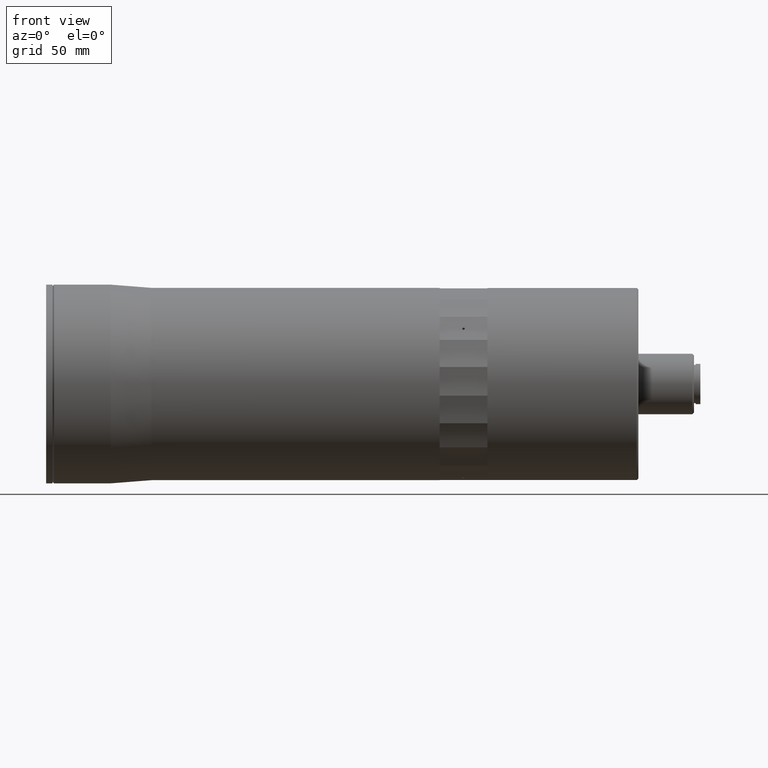
[diagram: clean part render]
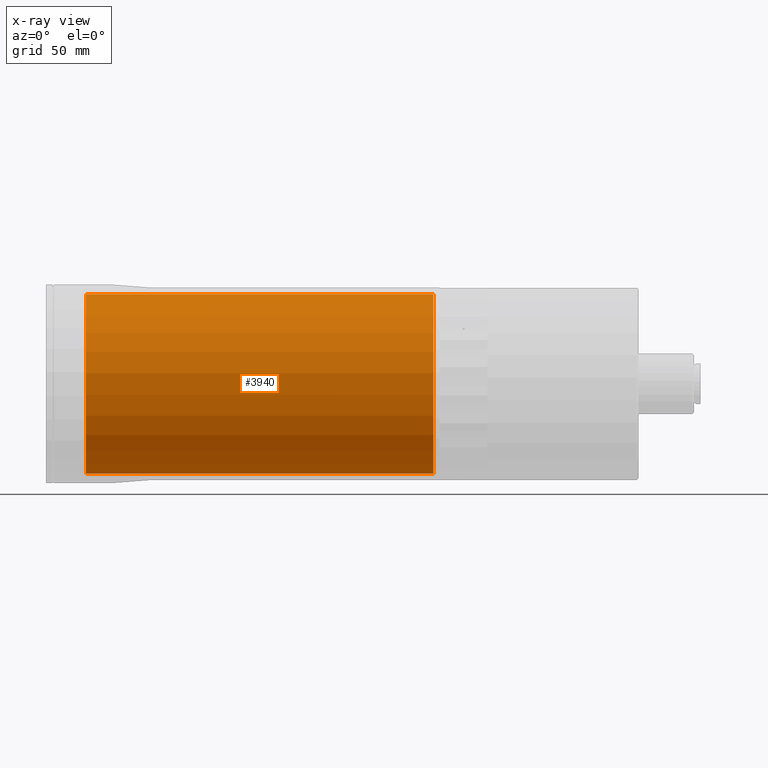
[diagram: x-ray — body ghosted, one internal face saturated and labeled with its STEP entity id]
A machine part, front view, then the same camera in x-ray: the body is ghosted and one INTERNAL B-rep face — a face not visible from any outside direction — is saturated and labeled: STEP entity #3940.
In plain terms, the highlighted cylindrical surface (partial cylindrical patch) has radius 56.5 mm, axis along (-1, -0, -0).
Its self-contained STEP definition (entity closure, byte-faithful):
#620 = CYLINDRICAL_SURFACE ( 'NONE', #20852, 56.49999999999998600 ) ;
#683 = EDGE_CURVE ( 'NONE', #4794, #3266, #19093, .T. ) ;
#3266 = VERTEX_POINT ( 'NONE', #5783 ) ;
#3619 = CARTESIAN_POINT ( 'NONE',  ( -125.8137890602518100, 0.0000000000000000000, 0.0000000000000000000 ) ) ;
#3940 = ADVANCED_FACE ( 'NONE', ( #5693 ), #620, .F. ) ;
#4377 = VERTEX_POINT ( 'NONE', #7672 ) ;
#4794 = VERTEX_POINT ( 'NONE', #22715 ) ;
#4838 = DIRECTION ( 'NONE',  ( -1.000000000000000000, -0.0000000000000000000, -0.0000000000000000000 ) ) ;
#5121 = DIRECTION ( 'NONE',  ( 0.0000000000000000000, 0.0000000000000000000, 1.000000000000000000 ) ) ;
#5625 = VECTOR ( 'NONE', #4838, 1000.000000000000000 ) ;
#5693 = FACE_OUTER_BOUND ( 'NONE', #22801, .T. ) ;
#5783 = CARTESIAN_POINT ( 'NONE',  ( -45.88266625839382600, 0.0000000000000000000, 56.50000000000000000 ) ) ;
#6946 = ORIENTED_EDGE ( 'NONE', *, *, #22395, .T. ) ;
#7538 = CARTESIAN_POINT ( 'NONE',  ( -264.4826662583938600, 6.919254415182543800E-015, -56.49999999999997200 ) ) ;
#7672 = CARTESIAN_POINT ( 'NONE',  ( -264.4826662583938600, 0.0000000000000000000, 56.49999999999997200 ) ) ;
#8251 = LINE ( 'NONE', #19760, #19539 ) ;
#8360 = DIRECTION ( 'NONE',  ( 0.0000000000000000000, 0.0000000000000000000, 1.000000000000000000 ) ) ;
#8881 = DIRECTION ( 'NONE',  ( -1.000000000000000000, -0.0000000000000000000, -0.0000000000000000000 ) ) ;
#9773 = AXIS2_PLACEMENT_3D ( 'NONE', #18044, #16294, #19726 ) ;
#10108 = CARTESIAN_POINT ( 'NONE',  ( -125.8137890602518100, 0.0000000000000000000, 56.49999999999998600 ) ) ;
#10875 = EDGE_CURVE ( 'NONE', #4794, #21883, #8251, .T. ) ;
#11480 = ORIENTED_EDGE ( 'NONE', *, *, #10875, .T. ) ;
#11995 = CARTESIAN_POINT ( 'NONE',  ( -45.88266625839382600, 0.0000000000000000000, 0.0000000000000000000 ) ) ;
#12300 = AXIS2_PLACEMENT_3D ( 'NONE', #11995, #19472, #8360 ) ;
#14536 = DIRECTION ( 'NONE',  ( -1.000000000000000000, -0.0000000000000000000, -0.0000000000000000000 ) ) ;
#16294 = DIRECTION ( 'NONE',  ( -1.000000000000000000, -0.0000000000000000000, -0.0000000000000000000 ) ) ;
#17094 = LINE ( 'NONE', #10108, #5625 ) ;
#18044 = CARTESIAN_POINT ( 'NONE',  ( -264.4826662583938600, 0.0000000000000000000, 0.0000000000000000000 ) ) ;
#18118 = ORIENTED_EDGE ( 'NONE', *, *, #683, .F. ) ;
#19093 = CIRCLE ( 'NONE', #12300, 56.50000000000000000 ) ;
#19472 = DIRECTION ( 'NONE',  ( -1.000000000000000000, -0.0000000000000000000, -0.0000000000000000000 ) ) ;
#19539 = VECTOR ( 'NONE', #14536, 1000.000000000000000 ) ;
#19726 = DIRECTION ( 'NONE',  ( 0.0000000000000000000, 0.0000000000000000000, 1.000000000000000000 ) ) ;
#19760 = CARTESIAN_POINT ( 'NONE',  ( -125.8137890602518100, 6.919254415182544500E-015, -56.49999999999998600 ) ) ;
#20852 = AXIS2_PLACEMENT_3D ( 'NONE', #3619, #8881, #5121 ) ;
#21883 = VERTEX_POINT ( 'NONE', #7538 ) ;
#22085 = EDGE_CURVE ( 'NONE', #3266, #4377, #17094, .T. ) ;
#22395 = EDGE_CURVE ( 'NONE', #21883, #4377, #22526, .T. ) ;
#22526 = CIRCLE ( 'NONE', #9773, 56.49999999999997200 ) ;
#22715 = CARTESIAN_POINT ( 'NONE',  ( -45.88266625839382600, 6.919254415182545300E-015, -56.50000000000000000 ) ) ;
#22801 = EDGE_LOOP ( 'NONE', ( #18118, #11480, #6946, #23261 ) ) ;
#23261 = ORIENTED_EDGE ( 'NONE', *, *, #22085, .F. ) ;